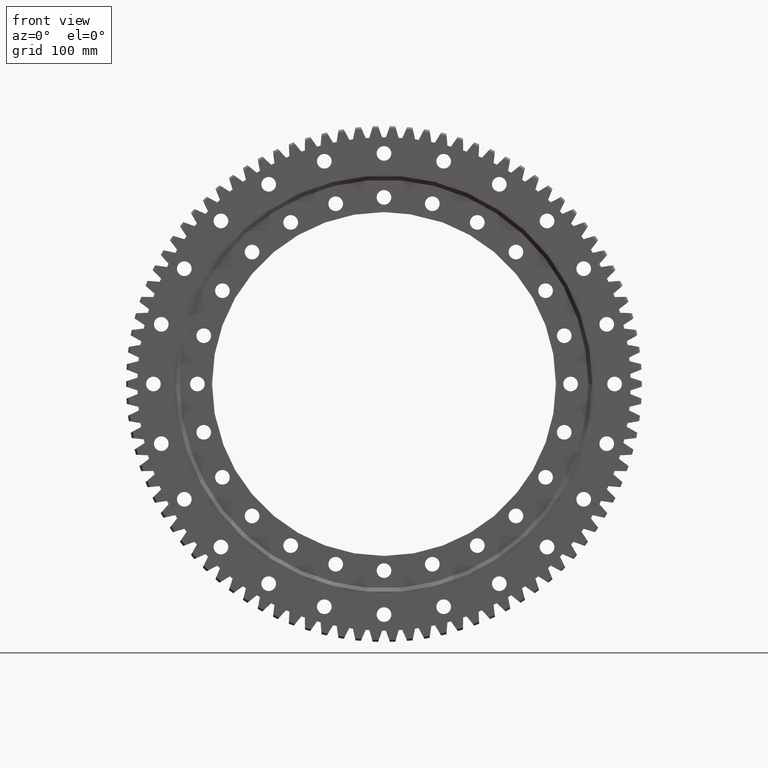
[diagram: clean part render]
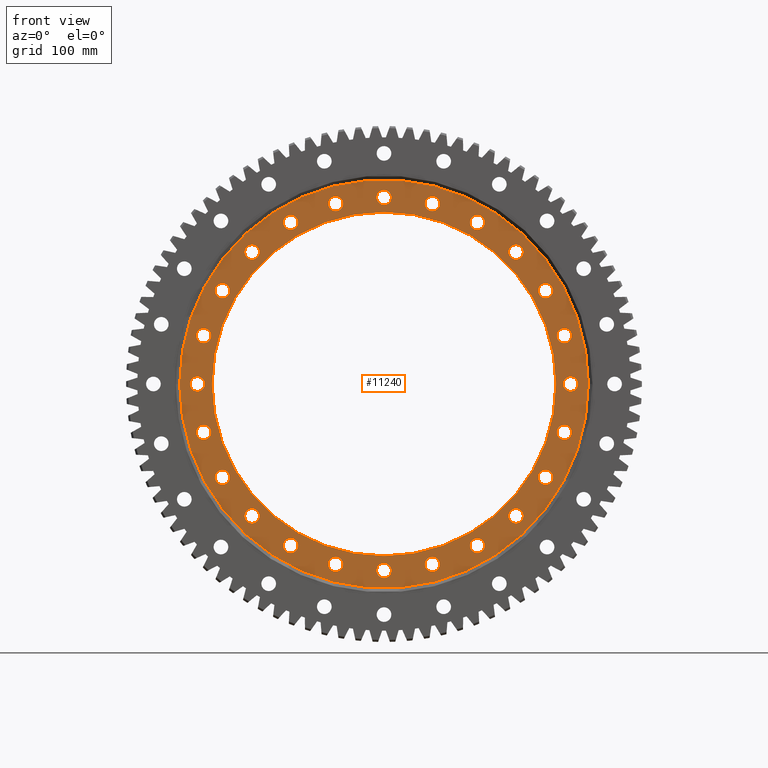
[diagram: same view with one face highlighted and labeled with its STEP entity id]
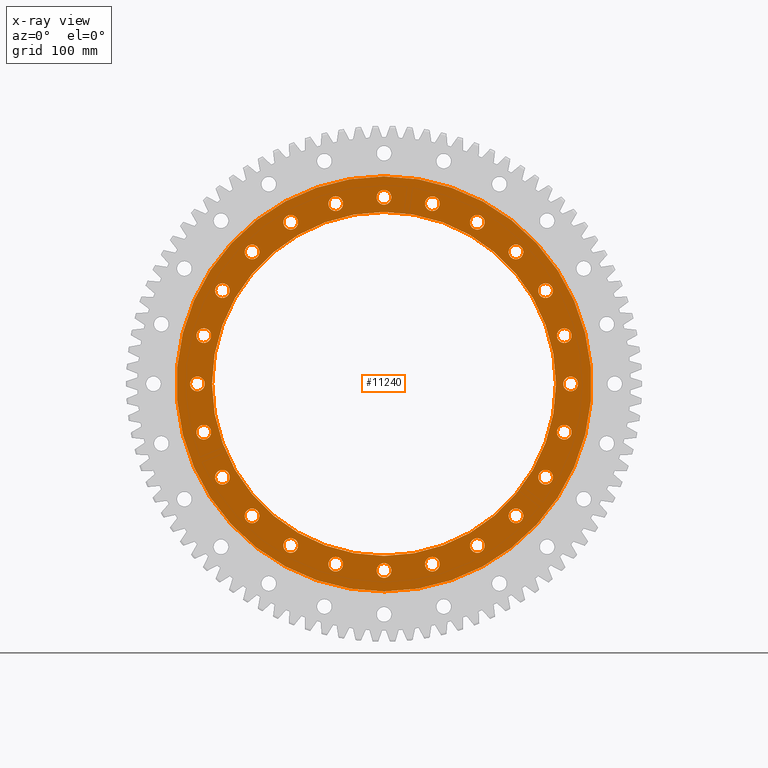
[diagram: x-ray of the same camera — body ghosted, the highlighted face saturated]
A machine part, front view. The second image highlights one B-rep face of the part: STEP entity #11240.
The next image is the same camera in x-ray: the body ghosted, the highlighted face saturated — about 0% of this face is hidden behind the body in this view.
In plain terms, the highlighted planar face has unit normal (-0, 1, -0).
Its self-contained STEP definition (entity closure, byte-faithful):
#23 = DIRECTION ( 'NONE',  ( -1.540743955509788700E-033, 1.000000000000000000, -2.727064569436389700E-017 ) ) ;
#186 = CARTESIAN_POINT ( 'NONE',  ( 197.9898987322337700, -28.00000000000002500, 208.9898987322328900 ) ) ;
#247 = AXIS2_PLACEMENT_3D ( 'NONE', #9327, #1546, #15220 ) ;
#438 = DIRECTION ( 'NONE',  ( 0.0000000000000000000, 1.000000000000000000, -2.727064569436390300E-017 ) ) ;
#482 = DIRECTION ( 'NONE',  ( 1.540743955509788700E-033, 1.000000000000000000, -2.727064569436389700E-017 ) ) ;
#484 = CIRCLE ( 'NONE', #487, 11.00000000000001200 ) ;
#487 = AXIS2_PLACEMENT_3D ( 'NONE', #9860, #23500, #11827 ) ;
#530 = CARTESIAN_POINT ( 'NONE',  ( 4.053661151360883500E-012, -28.00000000000002500, 269.0000000000000000 ) ) ;
#535 = CARTESIAN_POINT ( 'NONE',  ( -270.4592313609383000, -28.00000000000003200, 72.46933262870894100 ) ) ;
#593 = ORIENTED_EDGE ( 'NONE', *, *, #23211, .T. ) ;
#667 = AXIS2_PLACEMENT_3D ( 'NONE', #20891, #9199, #22859 ) ;
#715 = EDGE_LOOP ( 'NONE', ( #19233, #12029 ) ) ;
#806 = DIRECTION ( 'NONE',  ( 1.540743955509788700E-033, 1.000000000000000000, -2.727064569436389700E-017 ) ) ;
#845 = ORIENTED_EDGE ( 'NONE', *, *, #20296, .T. ) ;
#853 = EDGE_LOOP ( 'NONE', ( #13619, #24057 ) ) ;
#1004 = CARTESIAN_POINT ( 'NONE',  ( -72.46933262870800300, -28.00000000000003900, -259.4592313609385900 ) ) ;
#1090 = CARTESIAN_POINT ( 'NONE',  ( 140.0000000000004000, -28.00000000000002500, 242.4871130596426100 ) ) ;
#1098 = DIRECTION ( 'NONE',  ( 0.0000000000000000000, 1.000000000000000000, -2.727064569436389400E-017 ) ) ;
#1101 = VERTEX_POINT ( 'NONE', #15086 ) ;
#1119 = EDGE_LOOP ( 'NONE', ( #17348, #7028 ) ) ;
#1125 = CARTESIAN_POINT ( 'NONE',  ( -197.9898987322308400, -28.00000000000002500, 197.9898987322358400 ) ) ;
#1127 = ORIENTED_EDGE ( 'NONE', *, *, #6775, .T. ) ;
#1236 = CARTESIAN_POINT ( 'NONE',  ( -280.0000000000000000, -28.00000000000004600, 11.00000000000308200 ) ) ;
#1266 = FACE_BOUND ( 'NONE', #853, .T. ) ;
#1290 = AXIS2_PLACEMENT_3D ( 'NONE', #12510, #806, #14469 ) ;
#1378 = CARTESIAN_POINT ( 'NONE',  ( -242.4871130596411600, -28.00000000000003200, 140.0000000000029600 ) ) ;
#1381 = VERTEX_POINT ( 'NONE', #22610 ) ;
#1426 = VERTEX_POINT ( 'NONE', #15009 ) ;
#1527 = VERTEX_POINT ( 'NONE', #21097 ) ;
#1546 = DIRECTION ( 'NONE',  ( -0.0000000000000000000, 1.000000000000000000, -2.727064569436389700E-017 ) ) ;
#1559 = FACE_BOUND ( 'NONE', #22504, .T. ) ;
#1600 = CARTESIAN_POINT ( 'NONE',  ( 4.052314039881821400E-012, -28.00000000000002500, 280.0000000000000000 ) ) ;
#1638 = CARTESIAN_POINT ( 'NONE',  ( -197.9898987322308400, -28.00000000000002500, 186.9898987322358400 ) ) ;
#1662 = ORIENTED_EDGE ( 'NONE', *, *, #9496, .T. ) ;
#1717 = CARTESIAN_POINT ( 'NONE',  ( 72.46933262870612700, -28.00000000000002500, 259.4592313609390400 ) ) ;
#1753 = CARTESIAN_POINT ( 'NONE',  ( 242.4871130596421000, -28.00000000000003900, -129.0000000000012500 ) ) ;
#1762 = CARTESIAN_POINT ( 'NONE',  ( 139.9999999999985200, -28.00000000000003900, -253.4871130596437200 ) ) ;
#1786 = EDGE_CURVE ( 'NONE', #6903, #17535, #9351, .T. ) ;
#1863 = AXIS2_PLACEMENT_3D ( 'NONE', #10578, #24217, #12527 ) ;
#1922 = CARTESIAN_POINT ( 'NONE',  ( 280.0000000000000000, -28.00000000000004600, -1.118706137174147000E-012 ) ) ;
#1941 = CIRCLE ( 'NONE', #7208, 311.4124999999999700 ) ;
#1969 = CIRCLE ( 'NONE', #22322, 11.00000000000002000 ) ;
#2006 = EDGE_CURVE ( 'NONE', #1527, #21650, #16045, .T. ) ;
#2047 = EDGE_LOOP ( 'NONE', ( #11152, #11577 ) ) ;
#2129 = VERTEX_POINT ( 'NONE', #17232 ) ;
#2187 = FACE_BOUND ( 'NONE', #1119, .T. ) ;
#2248 = EDGE_CURVE ( 'NONE', #16853, #23823, #16970, .T. ) ;
#2521 = DIRECTION ( 'NONE',  ( -0.9659258262890689800, 0.0000000000000000000, 0.2588190451025180700 ) ) ;
#2538 = DIRECTION ( 'NONE',  ( 3.081487911019577400E-033, 1.000000000000000000, -2.727064569436389400E-017 ) ) ;
#2573 = ORIENTED_EDGE ( 'NONE', *, *, #18925, .T. ) ;
#2580 = AXIS2_PLACEMENT_3D ( 'NONE', #4216, #17880, #6187 ) ;
#2614 = EDGE_CURVE ( 'NONE', #23823, #16853, #24592, .T. ) ;
#2668 = EDGE_LOOP ( 'NONE', ( #19784, #12931 ) ) ;
#2759 = CIRCLE ( 'NONE', #18026, 11.00000000000000200 ) ;
#2803 = FACE_BOUND ( 'NONE', #11726, .T. ) ;
#2959 = EDGE_CURVE ( 'NONE', #22457, #13236, #7485, .T. ) ;
#2981 = DIRECTION ( 'NONE',  ( -3.081487911019577400E-033, 1.000000000000000000, -2.727064569436389100E-017 ) ) ;
#3015 = EDGE_LOOP ( 'NONE', ( #1127, #19066 ) ) ;
#3080 = DIRECTION ( 'NONE',  ( 0.4999999999999887900, 0.0000000000000000000, 0.8660254037844451500 ) ) ;
#3114 = DIRECTION ( 'NONE',  ( -0.7071067811865486800, 0.0000000000000000000, 0.7071067811865462400 ) ) ;
#3118 = DIRECTION ( 'NONE',  ( 1.540743955509788700E-033, 1.000000000000000000, -2.727064569436389100E-017 ) ) ;
#3150 = CIRCLE ( 'NONE', #5507, 11.00000000000000200 ) ;
#3168 = DIRECTION ( 'NONE',  ( -1.540743955509788700E-033, 1.000000000000000000, -2.727064569436390000E-017 ) ) ;
#3201 = VERTEX_POINT ( 'NONE', #16855 ) ;
#3261 = CARTESIAN_POINT ( 'NONE',  ( 139.9999999999985200, -28.00000000000003900, -242.4871130596437500 ) ) ;
#3303 = AXIS2_PLACEMENT_3D ( 'NONE', #8208, #21856, #10152 ) ;
#3368 = DIRECTION ( 'NONE',  ( -0.8660254037844393700, 0.0000000000000000000, 0.4999999999999987800 ) ) ;
#3431 = FACE_BOUND ( 'NONE', #3015, .T. ) ;
#3477 = ORIENTED_EDGE ( 'NONE', *, *, #11892, .T. ) ;
#3596 = DIRECTION ( 'NONE',  ( 0.0000000000000000000, 0.0000000000000000000, 1.000000000000000000 ) ) ;
#3614 = VERTEX_POINT ( 'NONE', #5708 ) ;
#3667 = CIRCLE ( 'NONE', #24020, 11.00000000000001100 ) ;
#3713 = AXIS2_PLACEMENT_3D ( 'NONE', #12805, #1098, #14759 ) ;
#3755 = EDGE_CURVE ( 'NONE', #13964, #6182, #18111, .T. ) ;
#3780 = DIRECTION ( 'NONE',  ( -1.540743955509788700E-033, 1.000000000000000000, -2.727064569436390000E-017 ) ) ;
#3845 = AXIS2_PLACEMENT_3D ( 'NONE', #5752, #19384, #7708 ) ;
#3857 = AXIS2_PLACEMENT_3D ( 'NONE', #10253, #23890, #12204 ) ;
#3885 = AXIS2_PLACEMENT_3D ( 'NONE', #1922, #15572, #3895 ) ;
#3895 = DIRECTION ( 'NONE',  ( 1.000000000000000000, 0.0000000000000000000, 1.047444401652938900E-014 ) ) ;
#3929 = AXIS2_PLACEMENT_3D ( 'NONE', #8677, #22339, #10647 ) ;
#4022 = FACE_BOUND ( 'NONE', #715, .T. ) ;
#4150 = CARTESIAN_POINT ( 'NONE',  ( 270.4592313609393800, -28.00000000000003200, 83.46933262870491900 ) ) ;
#4177 = EDGE_LOOP ( 'NONE', ( #20113, #593 ) ) ;
#4182 = VERTEX_POINT ( 'NONE', #5608 ) ;
#4216 = CARTESIAN_POINT ( 'NONE',  ( 280.0000000000000000, -28.00000000000004600, -1.118706137174147000E-012 ) ) ;
#4224 = CIRCLE ( 'NONE', #9497, 11.00000000000001100 ) ;
#4235 = EDGE_LOOP ( 'NONE', ( #7882, #1662 ) ) ;
#4315 = CARTESIAN_POINT ( 'NONE',  ( 0.0000000000000000000, -28.00000000000003200, -8.260568413772138900E-017 ) ) ;
#4558 = ORIENTED_EDGE ( 'NONE', *, *, #7245, .T. ) ;
#4580 = EDGE_CURVE ( 'NONE', #7662, #21347, #23902, .T. ) ;
#4613 = CIRCLE ( 'NONE', #3713, 11.00000000000002000 ) ;
#4705 = EDGE_CURVE ( 'NONE', #8585, #14795, #5910, .T. ) ;
#4720 = CIRCLE ( 'NONE', #667, 11.00000000000002000 ) ;
#4786 = EDGE_LOOP ( 'NONE', ( #2573, #8201 ) ) ;
#4909 = EDGE_CURVE ( 'NONE', #15422, #5270, #1941, .T. ) ;
#4976 = EDGE_LOOP ( 'NONE', ( #23409, #17016 ) ) ;
#5002 = AXIS2_PLACEMENT_3D ( 'NONE', #21004, #9302, #22957 ) ;
#5016 = DIRECTION ( 'NONE',  ( -3.081487911019577400E-033, 1.000000000000000000, -2.727064569436389700E-017 ) ) ;
#5213 = DIRECTION ( 'NONE',  ( 0.5000000000000074400, 0.0000000000000000000, -0.8660254037844342700 ) ) ;
#5234 = EDGE_CURVE ( 'NONE', #23298, #2129, #22398, .T. ) ;
#5270 = VERTEX_POINT ( 'NONE', #12369 ) ;
#5457 = CARTESIAN_POINT ( 'NONE',  ( 242.4871130596421000, -28.00000000000003900, -140.0000000000012500 ) ) ;
#5474 = AXIS2_PLACEMENT_3D ( 'NONE', #10157, #23808, #12120 ) ;
#5492 = ORIENTED_EDGE ( 'NONE', *, *, #18874, .T. ) ;
#5507 = AXIS2_PLACEMENT_3D ( 'NONE', #6057, #19705, #8021 ) ;
#5608 = CARTESIAN_POINT ( 'NONE',  ( -72.46933262870207700, -28.00000000000002500, 259.4592313609401200 ) ) ;
#5696 = AXIS2_PLACEMENT_3D ( 'NONE', #16699, #5016, #18681 ) ;
#5706 = AXIS2_PLACEMENT_3D ( 'NONE', #20395, #8700, #22363 ) ;
#5708 = CARTESIAN_POINT ( 'NONE',  ( -197.9898987322351300, -28.00000000000003900, -186.9898987322315000 ) ) ;
#5752 = CARTESIAN_POINT ( 'NONE',  ( 140.0000000000004000, -28.00000000000002500, 242.4871130596426100 ) ) ;
#5910 = CIRCLE ( 'NONE', #7681, 11.00000000000001100 ) ;
#5930 = CARTESIAN_POINT ( 'NONE',  ( 72.46933262870395300, -28.00000000000003900, -270.4592313609396100 ) ) ;
#5942 = ORIENTED_EDGE ( 'NONE', *, *, #18734, .T. ) ;
#6046 = EDGE_LOOP ( 'NONE', ( #22257, #845 ) ) ;
#6057 = CARTESIAN_POINT ( 'NONE',  ( 72.46933262870395300, -28.00000000000003900, -270.4592313609396100 ) ) ;
#6182 = VERTEX_POINT ( 'NONE', #14933 ) ;
#6187 = DIRECTION ( 'NONE',  ( 1.000000000000000000, 0.0000000000000000000, 1.047444401652938900E-014 ) ) ;
#6233 = DIRECTION ( 'NONE',  ( 3.081487911019577400E-033, 1.000000000000000000, -2.727064569436389700E-017 ) ) ;
#6296 = DIRECTION ( 'NONE',  ( -2.189528850507526700E-047, 1.000000000000000000, -2.727064569436389100E-017 ) ) ;
#6297 = DIRECTION ( 'NONE',  ( 0.0000000000000000000, 2.228200185897235700E-017, 1.000000000000000000 ) ) ;
#6411 = CARTESIAN_POINT ( 'NONE',  ( -242.4871130596442600, -28.00000000000003900, -139.9999999999976400 ) ) ;
#6576 = CARTESIAN_POINT ( 'NONE',  ( 270.4592313609393800, -28.00000000000003200, 72.46933262870490500 ) ) ;
#6611 = VERTEX_POINT ( 'NONE', #11598 ) ;
#6642 = CARTESIAN_POINT ( 'NONE',  ( 197.9898987322337700, -28.00000000000002500, 186.9898987322328600 ) ) ;
#6680 = AXIS2_PLACEMENT_3D ( 'NONE', #19935, #8246, #21896 ) ;
#6715 = CIRCLE ( 'NONE', #5706, 11.00000000000000900 ) ;
#6759 = CIRCLE ( 'NONE', #19011, 11.00000000000002000 ) ;
#6762 = EDGE_CURVE ( 'NONE', #21300, #7010, #6759, .T. ) ;
#6775 = EDGE_CURVE ( 'NONE', #23039, #15617, #20481, .T. ) ;
#6779 = FACE_OUTER_BOUND ( 'NONE', #15178, .T. ) ;
#6862 = CIRCLE ( 'NONE', #14632, 11.00000000000002700 ) ;
#6903 = VERTEX_POINT ( 'NONE', #6642 ) ;
#7010 = VERTEX_POINT ( 'NONE', #22589 ) ;
#7011 = VERTEX_POINT ( 'NONE', #10892 ) ;
#7013 = AXIS2_PLACEMENT_3D ( 'NONE', #8783, #22452, #10747 ) ;
#7028 = ORIENTED_EDGE ( 'NONE', *, *, #9077, .T. ) ;
#7089 = DIRECTION ( 'NONE',  ( -3.081487911019577400E-033, 1.000000000000000000, -2.727064569436389100E-017 ) ) ;
#7106 = CIRCLE ( 'NONE', #13819, 11.00000000000002100 ) ;
#7198 = AXIS2_PLACEMENT_3D ( 'NONE', #14653, #2981, #16627 ) ;
#7208 = AXIS2_PLACEMENT_3D ( 'NONE', #4315, #17983, #6297 ) ;
#7226 = CARTESIAN_POINT ( 'NONE',  ( -139.9999999999967900, -28.00000000000002500, 242.4871130596447100 ) ) ;
#7228 = ORIENTED_EDGE ( 'NONE', *, *, #24408, .T. ) ;
#7245 = EDGE_CURVE ( 'NONE', #14251, #16828, #2759, .T. ) ;
#7276 = EDGE_LOOP ( 'NONE', ( #8146, #11235 ) ) ;
#7395 = FACE_BOUND ( 'NONE', #4786, .T. ) ;
#7419 = DIRECTION ( 'NONE',  ( 0.8660254037844428200, 0.0000000000000000000, -0.4999999999999928900 ) ) ;
#7455 = CARTESIAN_POINT ( 'NONE',  ( 72.46933262870395300, -28.00000000000003900, -259.4592313609396100 ) ) ;
#7485 = CIRCLE ( 'NONE', #6680, 10.99999999999998000 ) ;
#7496 = CIRCLE ( 'NONE', #22805, 11.00000000000000000 ) ;
#7620 = CARTESIAN_POINT ( 'NONE',  ( 3.159588741800171200E-014, -28.00000000000003200, -258.0000000000000000 ) ) ;
#7662 = VERTEX_POINT ( 'NONE', #11467 ) ;
#7681 = AXIS2_PLACEMENT_3D ( 'NONE', #1600, #15271, #3596 ) ;
#7708 = DIRECTION ( 'NONE',  ( 0.4999999999999887900, 0.0000000000000000000, 0.8660254037844451500 ) ) ;
#7745 = AXIS2_PLACEMENT_3D ( 'NONE', #6576, #20223, #8530 ) ;
#7796 = ORIENTED_EDGE ( 'NONE', *, *, #8960, .T. ) ;
#7882 = ORIENTED_EDGE ( 'NONE', *, *, #17514, .T. ) ;
#7899 = DIRECTION ( 'NONE',  ( 0.2588190451025287900, 0.0000000000000000000, -0.9659258262890662000 ) ) ;
#7913 = ORIENTED_EDGE ( 'NONE', *, *, #21483, .T. ) ;
#7994 = FACE_BOUND ( 'NONE', #14554, .T. ) ;
#8018 = EDGE_CURVE ( 'NONE', #11254, #10526, #24395, .T. ) ;
#8021 = DIRECTION ( 'NONE',  ( 0.2588190451025287900, 0.0000000000000000000, -0.9659258262890662000 ) ) ;
#8084 = ORIENTED_EDGE ( 'NONE', *, *, #20474, .T. ) ;
#8106 = ORIENTED_EDGE ( 'NONE', *, *, #19812, .T. ) ;
#8146 = ORIENTED_EDGE ( 'NONE', *, *, #21445, .T. ) ;
#8193 = EDGE_LOOP ( 'NONE', ( #12019, #7796 ) ) ;
#8201 = ORIENTED_EDGE ( 'NONE', *, *, #1786, .T. ) ;
#8208 = CARTESIAN_POINT ( 'NONE',  ( -197.9898987322351300, -28.00000000000003900, -197.9898987322315000 ) ) ;
#8246 = DIRECTION ( 'NONE',  ( 3.081487911019577400E-033, 1.000000000000000000, -2.727064569436389700E-017 ) ) ;
#8262 = DIRECTION ( 'NONE',  ( -3.081487911019577400E-033, 1.000000000000000000, -2.727064569436389400E-017 ) ) ;
#8270 = DIRECTION ( 'NONE',  ( 9.244463733058732100E-033, 1.000000000000000000, -2.727064569436389100E-017 ) ) ;
#8298 = ORIENTED_EDGE ( 'NONE', *, *, #2248, .T. ) ;
#8372 = DIRECTION ( 'NONE',  ( -0.8660254037844360400, 0.0000000000000000000, -0.5000000000000044400 ) ) ;
#8427 = CARTESIAN_POINT ( 'NONE',  ( 4.052314039881821400E-012, -28.00000000000002500, 280.0000000000000000 ) ) ;
#8439 = VERTEX_POINT ( 'NONE', #17629 ) ;
#8522 = DIRECTION ( 'NONE',  ( -3.081487911019577400E-033, 1.000000000000000000, -2.727064569436389100E-017 ) ) ;
#8530 = DIRECTION ( 'NONE',  ( 0.9659258262890655400, 0.0000000000000000000, 0.2588190451025311200 ) ) ;
#8565 = CIRCLE ( 'NONE', #3303, 11.00000000000002000 ) ;
#8566 = DIRECTION ( 'NONE',  ( -2.189528850507526700E-047, 1.000000000000000000, -2.727064569436389100E-017 ) ) ;
#8580 = AXIS2_PLACEMENT_3D ( 'NONE', #1090, #14749, #3080 ) ;
#8585 = VERTEX_POINT ( 'NONE', #530 ) ;
#8596 = CIRCLE ( 'NONE', #5696, 11.00000000000002700 ) ;
#8602 = FACE_BOUND ( 'NONE', #13534, .T. ) ;
#8677 = CARTESIAN_POINT ( 'NONE',  ( -280.0000000000000000, -28.00000000000004600, 3.075462843085185600E-012 ) ) ;
#8700 = DIRECTION ( 'NONE',  ( -3.081487911019577400E-033, 1.000000000000000000, -2.727064569436389700E-017 ) ) ;
#8783 = CARTESIAN_POINT ( 'NONE',  ( -72.46933262870800300, -28.00000000000003900, -270.4592313609385900 ) ) ;
#8960 = EDGE_CURVE ( 'NONE', #13236, #22457, #20574, .T. ) ;
#9004 = CARTESIAN_POINT ( 'NONE',  ( 4.052314039881821400E-012, -28.00000000000002500, 291.0000000000000600 ) ) ;
#9077 = EDGE_CURVE ( 'NONE', #21547, #6611, #12927, .T. ) ;
#9161 = DIRECTION ( 'NONE',  ( -0.5000000000000007800, 0.0000000000000000000, 0.8660254037844382600 ) ) ;
#9199 = DIRECTION ( 'NONE',  ( -3.081487911019577400E-033, 1.000000000000000000, -2.727064569436389400E-017 ) ) ;
#9211 = FACE_BOUND ( 'NONE', #22994, .T. ) ;
#9259 = CARTESIAN_POINT ( 'NONE',  ( 242.4871130596432400, -28.00000000000003200, 150.9999999999993500 ) ) ;
#9260 = EDGE_CURVE ( 'NONE', #4182, #7011, #14429, .T. ) ;
#9302 = DIRECTION ( 'NONE',  ( -0.0000000000000000000, 1.000000000000000000, -2.727064569436389700E-017 ) ) ;
#9327 = CARTESIAN_POINT ( 'NONE',  ( 0.0000000000000000000, -28.00000000000002100, 258.0000000000000000 ) ) ;
#9351 = CIRCLE ( 'NONE', #22181, 11.00000000000002000 ) ;
#9389 = ORIENTED_EDGE ( 'NONE', *, *, #10507, .T. ) ;
#9451 = CARTESIAN_POINT ( 'NONE',  ( -72.46933262870800300, -28.00000000000003900, -281.4592313609385900 ) ) ;
#9457 = EDGE_CURVE ( 'NONE', #6611, #21547, #21169, .T. ) ;
#9496 = EDGE_CURVE ( 'NONE', #12078, #15506, #15351, .T. ) ;
#9497 = AXIS2_PLACEMENT_3D ( 'NONE', #20258, #8566, #22225 ) ;
#9619 = VERTEX_POINT ( 'NONE', #20989 ) ;
#9701 = AXIS2_PLACEMENT_3D ( 'NONE', #17928, #6233, #19877 ) ;
#9822 = FACE_BOUND ( 'NONE', #7276, .T. ) ;
#9860 = CARTESIAN_POINT ( 'NONE',  ( 139.9999999999985200, -28.00000000000003900, -242.4871130596437500 ) ) ;
#9921 = EDGE_CURVE ( 'NONE', #18521, #3201, #15634, .T. ) ;
#9984 = DIRECTION ( 'NONE',  ( 9.244463733058732100E-033, 1.000000000000000000, -2.727064569436388400E-017 ) ) ;
#10120 = DIRECTION ( 'NONE',  ( 0.0000000000000000000, 1.000000000000000000, -2.727064569436390300E-017 ) ) ;
#10152 = DIRECTION ( 'NONE',  ( -0.7071067811865438000, 0.0000000000000000000, -0.7071067811865513500 ) ) ;
#10157 = CARTESIAN_POINT ( 'NONE',  ( 0.0000000000000000000, -28.00000000000003200, -8.260568413772138900E-017 ) ) ;
#10253 = CARTESIAN_POINT ( 'NONE',  ( 0.0000000000000000000, -28.00000000000002500, -8.260568413772157400E-017 ) ) ;
#10387 = DIRECTION ( 'NONE',  ( 0.0000000000000000000, 0.0000000000000000000, 1.000000000000000000 ) ) ;
#10507 = EDGE_CURVE ( 'NONE', #16487, #15870, #8596, .T. ) ;
#10526 = VERTEX_POINT ( 'NONE', #10898 ) ;
#10552 = VERTEX_POINT ( 'NONE', #1236 ) ;
#10578 = CARTESIAN_POINT ( 'NONE',  ( -72.46933262870207700, -28.00000000000002500, 270.4592313609401200 ) ) ;
#10647 = DIRECTION ( 'NONE',  ( -1.000000000000000000, 0.0000000000000000000, -3.491481338843147200E-015 ) ) ;
#10741 = EDGE_CURVE ( 'NONE', #6182, #13964, #14685, .T. ) ;
#10747 = DIRECTION ( 'NONE',  ( -0.2588190451025145200, 0.0000000000000000000, -0.9659258262890698700 ) ) ;
#10811 = CIRCLE ( 'NONE', #17268, 11.00000000000000500 ) ;
#10892 = CARTESIAN_POINT ( 'NONE',  ( -72.46933262870207700, -28.00000000000002500, 281.4592313609401200 ) ) ;
#10898 = CARTESIAN_POINT ( 'NONE',  ( -197.9898987322308400, -28.00000000000002500, 208.9898987322358700 ) ) ;
#10902 = CARTESIAN_POINT ( 'NONE',  ( -270.4592313609399500, -28.00000000000004600, -72.46933262870301500 ) ) ;
#10945 = EDGE_LOOP ( 'NONE', ( #16675, #23388 ) ) ;
#11004 = DIRECTION ( 'NONE',  ( -3.081487911019577400E-033, 1.000000000000000000, -2.727064569436389700E-017 ) ) ;
#11107 = EDGE_CURVE ( 'NONE', #10526, #11254, #7106, .T. ) ;
#11146 = DIRECTION ( 'NONE',  ( -1.540743955509788700E-033, 1.000000000000000000, -2.727064569436389700E-017 ) ) ;
#11152 = ORIENTED_EDGE ( 'NONE', *, *, #5234, .T. ) ;
#11171 = DIRECTION ( 'NONE',  ( 3.081487911019577400E-033, 1.000000000000000000, -2.727064569436389400E-017 ) ) ;
#11235 = ORIENTED_EDGE ( 'NONE', *, *, #9921, .T. ) ;
#11240 = ADVANCED_FACE ( 'NONE', ( #14384, #1266, #19594, #9822, #9211, #4022, #24160, #18993, #13759, #8602, #3431, #23544, #18388, #13162, #7994, #2803, #22953, #17746, #12566, #7395, #2187, #22345, #17153, #11955, #6779, #1559 ), #24953, .F. ) ;
#11254 = VERTEX_POINT ( 'NONE', #1638 ) ;
#11354 = ORIENTED_EDGE ( 'NONE', *, *, #20051, .T. ) ;
#11467 = CARTESIAN_POINT ( 'NONE',  ( -140.0000000000021000, -28.00000000000003900, -231.4871130596416400 ) ) ;
#11482 = AXIS2_PLACEMENT_3D ( 'NONE', #22854, #11171, #24810 ) ;
#11549 = EDGE_LOOP ( 'NONE', ( #5492, #9389 ) ) ;
#11577 = ORIENTED_EDGE ( 'NONE', *, *, #19642, .T. ) ;
#11598 = CARTESIAN_POINT ( 'NONE',  ( 140.0000000000004000, -28.00000000000002500, 253.4871130596426100 ) ) ;
#11726 = EDGE_LOOP ( 'NONE', ( #3477, #7913 ) ) ;
#11755 = CIRCLE ( 'NONE', #19515, 11.00000000000002700 ) ;
#11758 = CARTESIAN_POINT ( 'NONE',  ( 72.46933262870612700, -28.00000000000002500, 270.4592313609391000 ) ) ;
#11782 = CARTESIAN_POINT ( 'NONE',  ( -242.4871130596411600, -28.00000000000003200, 129.0000000000029600 ) ) ;
#11827 = DIRECTION ( 'NONE',  ( 0.5000000000000074400, 0.0000000000000000000, -0.8660254037844342700 ) ) ;
#11892 = EDGE_CURVE ( 'NONE', #1381, #20123, #14029, .T. ) ;
#11955 = FACE_BOUND ( 'NONE', #10945, .T. ) ;
#12019 = ORIENTED_EDGE ( 'NONE', *, *, #2959, .T. ) ;
#12029 = ORIENTED_EDGE ( 'NONE', *, *, #2006, .T. ) ;
#12034 = AXIS2_PLACEMENT_3D ( 'NONE', #11758, #23, #13693 ) ;
#12078 = VERTEX_POINT ( 'NONE', #1762 ) ;
#12120 = DIRECTION ( 'NONE',  ( 0.0000000000000000000, 2.228200185897235700E-017, 1.000000000000000000 ) ) ;
#12147 = CARTESIAN_POINT ( 'NONE',  ( 197.9898987322321800, -28.00000000000003900, -197.9898987322344500 ) ) ;
#12188 = CARTESIAN_POINT ( 'NONE',  ( -72.46933262870207700, -28.00000000000002500, 270.4592313609401200 ) ) ;
#12204 = DIRECTION ( 'NONE',  ( 0.0000000000000000000, 2.689493761204351900E-017, 1.000000000000000000 ) ) ;
#12317 = AXIS2_PLACEMENT_3D ( 'NONE', #18773, #7089, #20722 ) ;
#12369 = CARTESIAN_POINT ( 'NONE',  ( 3.813703213394750900E-014, -28.00000000000003900, -311.4124999999999700 ) ) ;
#12510 = CARTESIAN_POINT ( 'NONE',  ( -139.9999999999967900, -28.00000000000002500, 242.4871130596447100 ) ) ;
#12527 = DIRECTION ( 'NONE',  ( -0.2588190451025216800, 0.0000000000000000000, 0.9659258262890679800 ) ) ;
#12566 = FACE_BOUND ( 'NONE', #11549, .T. ) ;
#12617 = ORIENTED_EDGE ( 'NONE', *, *, #17310, .T. ) ;
#12641 = CIRCLE ( 'NONE', #21816, 10.99999999999999500 ) ;
#12805 = CARTESIAN_POINT ( 'NONE',  ( -197.9898987322351300, -28.00000000000003900, -197.9898987322315000 ) ) ;
#12811 = CIRCLE ( 'NONE', #3929, 11.00000000000001100 ) ;
#12863 = DIRECTION ( 'NONE',  ( -0.9659258262890670900, 0.0000000000000000000, -0.2588190451025252400 ) ) ;
#12927 = CIRCLE ( 'NONE', #3845, 11.00000000000003400 ) ;
#12931 = ORIENTED_EDGE ( 'NONE', *, *, #22867, .T. ) ;
#12969 = VERTEX_POINT ( 'NONE', #20586 ) ;
#12984 = CIRCLE ( 'NONE', #1863, 10.99999999999998000 ) ;
#13136 = VERTEX_POINT ( 'NONE', #7620 ) ;
#13162 = FACE_BOUND ( 'NONE', #6046, .T. ) ;
#13232 = CIRCLE ( 'NONE', #14091, 11.00000000000002300 ) ;
#13236 = VERTEX_POINT ( 'NONE', #11782 ) ;
#13246 = EDGE_LOOP ( 'NONE', ( #19358, #5942 ) ) ;
#13353 = EDGE_CURVE ( 'NONE', #21650, #1527, #20195, .T. ) ;
#13458 = AXIS2_PLACEMENT_3D ( 'NONE', #1378, #15039, #3368 ) ;
#13534 = EDGE_LOOP ( 'NONE', ( #8084, #7228 ) ) ;
#13619 = ORIENTED_EDGE ( 'NONE', *, *, #11107, .T. ) ;
#13659 = VERTEX_POINT ( 'NONE', #23109 ) ;
#13693 = DIRECTION ( 'NONE',  ( 0.2588190451025075300, 0.0000000000000000000, 0.9659258262890719800 ) ) ;
#13759 = FACE_BOUND ( 'NONE', #2668, .T. ) ;
#13796 = AXIS2_PLACEMENT_3D ( 'NONE', #15464, #3780, #17427 ) ;
#13819 = AXIS2_PLACEMENT_3D ( 'NONE', #1125, #14794, #3114 ) ;
#13828 = CIRCLE ( 'NONE', #19211, 11.00000000000001600 ) ;
#13929 = CIRCLE ( 'NONE', #11482, 11.00000000000001100 ) ;
#13964 = VERTEX_POINT ( 'NONE', #20273 ) ;
#14010 = EDGE_CURVE ( 'NONE', #3614, #23672, #8565, .T. ) ;
#14029 = CIRCLE ( 'NONE', #7198, 11.00000000000000500 ) ;
#14067 = ORIENTED_EDGE ( 'NONE', *, *, #2614, .T. ) ;
#14091 = AXIS2_PLACEMENT_3D ( 'NONE', #21660, #9984, #23619 ) ;
#14096 = DIRECTION ( 'NONE',  ( 0.7071067811865537900, 0.0000000000000000000, -0.7071067811865412400 ) ) ;
#14111 = CARTESIAN_POINT ( 'NONE',  ( -2.095737378650604300E-012, -28.00000000000003900, -291.0000000000000600 ) ) ;
#14135 = DIRECTION ( 'NONE',  ( -0.2588190451025216800, 0.0000000000000000000, 0.9659258262890679800 ) ) ;
#14195 = DIRECTION ( 'NONE',  ( 3.081487911019577400E-033, 1.000000000000000000, -2.727064569436389400E-017 ) ) ;
#14212 = CARTESIAN_POINT ( 'NONE',  ( -270.4592313609383000, -28.00000000000003200, 72.46933262870894100 ) ) ;
#14251 = VERTEX_POINT ( 'NONE', #22873 ) ;
#14384 = FACE_BOUND ( 'NONE', #19374, .T. ) ;
#14429 = CIRCLE ( 'NONE', #15596, 10.99999999999998000 ) ;
#14463 = VERTEX_POINT ( 'NONE', #4150 ) ;
#14469 = DIRECTION ( 'NONE',  ( -0.5000000000000007800, 0.0000000000000000000, 0.8660254037844382600 ) ) ;
#14554 = EDGE_LOOP ( 'NONE', ( #11354, #25276 ) ) ;
#14632 = AXIS2_PLACEMENT_3D ( 'NONE', #14212, #2538, #16186 ) ;
#14653 = CARTESIAN_POINT ( 'NONE',  ( 270.4592313609388200, -28.00000000000004600, -72.46933262870705100 ) ) ;
#14685 = CIRCLE ( 'NONE', #3885, 11.00000000000001100 ) ;
#14749 = DIRECTION ( 'NONE',  ( -1.540743955509788700E-033, 1.000000000000000000, -2.727064569436389700E-017 ) ) ;
#14759 = DIRECTION ( 'NONE',  ( -0.7071067811865438000, 0.0000000000000000000, -0.7071067811865513500 ) ) ;
#14794 = DIRECTION ( 'NONE',  ( 3.081487911019577400E-033, 1.000000000000000000, -2.727064569436389700E-017 ) ) ;
#14795 = VERTEX_POINT ( 'NONE', #9004 ) ;
#14803 = CARTESIAN_POINT ( 'NONE',  ( -72.46933262870800300, -28.00000000000003900, -270.4592313609385900 ) ) ;
#14856 = CARTESIAN_POINT ( 'NONE',  ( -140.0000000000021000, -28.00000000000003900, -242.4871130596416400 ) ) ;
#14881 = EDGE_LOOP ( 'NONE', ( #8106, #23081 ) ) ;
#14933 = CARTESIAN_POINT ( 'NONE',  ( 280.0000000000000000, -28.00000000000004600, -11.00000000000112400 ) ) ;
#15009 = CARTESIAN_POINT ( 'NONE',  ( 270.4592313609393800, -28.00000000000003200, 61.46933262870489800 ) ) ;
#15039 = DIRECTION ( 'NONE',  ( 3.081487911019577400E-033, 1.000000000000000000, -2.727064569436389700E-017 ) ) ;
#15086 = CARTESIAN_POINT ( 'NONE',  ( -280.0000000000000000, -28.00000000000004600, -10.99999999999693000 ) ) ;
#15116 = CIRCLE ( 'NONE', #12317, 11.00000000000000000 ) ;
#15178 = EDGE_LOOP ( 'NONE', ( #15368, #25292 ) ) ;
#15220 = DIRECTION ( 'NONE',  ( 0.0000000000000000000, 2.727064569436389700E-017, 1.000000000000000000 ) ) ;
#15271 = DIRECTION ( 'NONE',  ( 0.0000000000000000000, 1.000000000000000000, -2.727064569436389700E-017 ) ) ;
#15351 = CIRCLE ( 'NONE', #16771, 11.00000000000001200 ) ;
#15368 = ORIENTED_EDGE ( 'NONE', *, *, #4909, .F. ) ;
#15422 = VERTEX_POINT ( 'NONE', #17400 ) ;
#15464 = CARTESIAN_POINT ( 'NONE',  ( -140.0000000000021000, -28.00000000000003900, -242.4871130596416400 ) ) ;
#15506 = VERTEX_POINT ( 'NONE', #19615 ) ;
#15572 = DIRECTION ( 'NONE',  ( -3.081487911019577400E-033, 1.000000000000000000, -2.727064569436389700E-017 ) ) ;
#15596 = AXIS2_PLACEMENT_3D ( 'NONE', #12188, #482, #14135 ) ;
#15617 = VERTEX_POINT ( 'NONE', #14111 ) ;
#15623 = CIRCLE ( 'NONE', #13796, 11.00000000000001400 ) ;
#15634 = CIRCLE ( 'NONE', #17594, 11.00000000000002700 ) ;
#15647 = EDGE_CURVE ( 'NONE', #14795, #8585, #3667, .T. ) ;
#15712 = EDGE_CURVE ( 'NONE', #13659, #9619, #23781, .T. ) ;
#15718 = EDGE_CURVE ( 'NONE', #1101, #10552, #12811, .T. ) ;
#15842 = ORIENTED_EDGE ( 'NONE', *, *, #20556, .T. ) ;
#15870 = VERTEX_POINT ( 'NONE', #9259 ) ;
#16045 = CIRCLE ( 'NONE', #16452, 10.99999999999999100 ) ;
#16067 = CARTESIAN_POINT ( 'NONE',  ( -242.4871130596411600, -28.00000000000003200, 151.0000000000029600 ) ) ;
#16186 = DIRECTION ( 'NONE',  ( -0.9659258262890689800, 0.0000000000000000000, 0.2588190451025180700 ) ) ;
#16223 = EDGE_CURVE ( 'NONE', #15617, #23039, #4224, .T. ) ;
#16281 = CIRCLE ( 'NONE', #3857, 258.0000000000000000 ) ;
#16452 = AXIS2_PLACEMENT_3D ( 'NONE', #10902, #24563, #12863 ) ;
#16487 = VERTEX_POINT ( 'NONE', #17177 ) ;
#16627 = DIRECTION ( 'NONE',  ( 0.9659258262890708700, 0.0000000000000000000, -0.2588190451025110300 ) ) ;
#16675 = ORIENTED_EDGE ( 'NONE', *, *, #15647, .T. ) ;
#16699 = CARTESIAN_POINT ( 'NONE',  ( 242.4871130596432400, -28.00000000000003200, 139.9999999999993500 ) ) ;
#16762 = DIRECTION ( 'NONE',  ( -0.2588190451025145200, 0.0000000000000000000, -0.9659258262890698700 ) ) ;
#16771 = AXIS2_PLACEMENT_3D ( 'NONE', #3261, #16889, #5213 ) ;
#16813 = DIRECTION ( 'NONE',  ( -0.4999999999999947300, 0.0000000000000000000, -0.8660254037844417100 ) ) ;
#16828 = VERTEX_POINT ( 'NONE', #7455 ) ;
#16853 = VERTEX_POINT ( 'NONE', #1717 ) ;
#16855 = CARTESIAN_POINT ( 'NONE',  ( -270.4592313609383000, -28.00000000000003200, 83.46933262870895500 ) ) ;
#16889 = DIRECTION ( 'NONE',  ( -1.540743955509788700E-033, 1.000000000000000000, -2.727064569436389100E-017 ) ) ;
#16970 = CIRCLE ( 'NONE', #12034, 10.99999999999999300 ) ;
#17016 = ORIENTED_EDGE ( 'NONE', *, *, #10741, .T. ) ;
#17153 = FACE_BOUND ( 'NONE', #14881, .T. ) ;
#17177 = CARTESIAN_POINT ( 'NONE',  ( 242.4871130596432400, -28.00000000000003200, 128.9999999999993500 ) ) ;
#17232 = CARTESIAN_POINT ( 'NONE',  ( -242.4871130596442600, -28.00000000000003900, -150.9999999999976700 ) ) ;
#17268 = AXIS2_PLACEMENT_3D ( 'NONE', #20206, #8522, #22179 ) ;
#17310 = EDGE_CURVE ( 'NONE', #10552, #1101, #13929, .T. ) ;
#17325 = CARTESIAN_POINT ( 'NONE',  ( -242.4871130596442600, -28.00000000000003900, -128.9999999999976400 ) ) ;
#17348 = ORIENTED_EDGE ( 'NONE', *, *, #9457, .T. ) ;
#17376 = VERTEX_POINT ( 'NONE', #9451 ) ;
#17400 = CARTESIAN_POINT ( 'NONE',  ( 0.0000000000000000000, -28.00000000000002500, 311.4124999999999700 ) ) ;
#17427 = DIRECTION ( 'NONE',  ( -0.4999999999999947300, 0.0000000000000000000, -0.8660254037844417100 ) ) ;
#17514 = EDGE_CURVE ( 'NONE', #15506, #12078, #484, .T. ) ;
#17535 = VERTEX_POINT ( 'NONE', #186 ) ;
#17594 = AXIS2_PLACEMENT_3D ( 'NONE', #535, #14195, #2521 ) ;
#17629 = CARTESIAN_POINT ( 'NONE',  ( 0.0000000000000000000, -28.00000000000001800, 258.0000000000000000 ) ) ;
#17746 = FACE_BOUND ( 'NONE', #13246, .T. ) ;
#17880 = DIRECTION ( 'NONE',  ( -3.081487911019577400E-033, 1.000000000000000000, -2.727064569436389700E-017 ) ) ;
#17928 = CARTESIAN_POINT ( 'NONE',  ( -197.9898987322308400, -28.00000000000002500, 197.9898987322358400 ) ) ;
#17982 = CARTESIAN_POINT ( 'NONE',  ( -2.097084490129666500E-012, -28.00000000000003900, -280.0000000000000000 ) ) ;
#17983 = DIRECTION ( 'NONE',  ( -0.0000000000000000000, 1.000000000000000000, -2.727064569436389700E-017 ) ) ;
#18026 = AXIS2_PLACEMENT_3D ( 'NONE', #5930, #19577, #7899 ) ;
#18111 = CIRCLE ( 'NONE', #2580, 11.00000000000001100 ) ;
#18127 = CIRCLE ( 'NONE', #5002, 258.0000000000000000 ) ;
#18205 = ORIENTED_EDGE ( 'NONE', *, *, #21676, .T. ) ;
#18344 = CARTESIAN_POINT ( 'NONE',  ( 140.0000000000004000, -28.00000000000002500, 231.4871130596425800 ) ) ;
#18388 = FACE_BOUND ( 'NONE', #4235, .T. ) ;
#18433 = ORIENTED_EDGE ( 'NONE', *, *, #20893, .T. ) ;
#18521 = VERTEX_POINT ( 'NONE', #25364 ) ;
#18641 = AXIS2_PLACEMENT_3D ( 'NONE', #14856, #3168, #16813 ) ;
#18681 = DIRECTION ( 'NONE',  ( 0.8660254037844331600, 0.0000000000000000000, 0.5000000000000093300 ) ) ;
#18734 = EDGE_CURVE ( 'NONE', #1426, #14463, #22751, .T. ) ;
#18773 = CARTESIAN_POINT ( 'NONE',  ( 242.4871130596421000, -28.00000000000003900, -140.0000000000012500 ) ) ;
#18833 = VERTEX_POINT ( 'NONE', #1004 ) ;
#18874 = EDGE_CURVE ( 'NONE', #15870, #16487, #11755, .T. ) ;
#18925 = EDGE_CURVE ( 'NONE', #17535, #6903, #4720, .T. ) ;
#18963 = CARTESIAN_POINT ( 'NONE',  ( -270.4592313609399500, -28.00000000000004600, -61.46933262870300800 ) ) ;
#18993 = FACE_BOUND ( 'NONE', #4177, .T. ) ;
#19011 = AXIS2_PLACEMENT_3D ( 'NONE', #21818, #10120, #23763 ) ;
#19066 = ORIENTED_EDGE ( 'NONE', *, *, #16223, .T. ) ;
#19097 = DIRECTION ( 'NONE',  ( -3.081487911019577400E-033, 1.000000000000000000, -2.727064569436389100E-017 ) ) ;
#19187 = EDGE_CURVE ( 'NONE', #5270, #15422, #24570, .T. ) ;
#19211 = AXIS2_PLACEMENT_3D ( 'NONE', #14803, #3118, #16762 ) ;
#19233 = ORIENTED_EDGE ( 'NONE', *, *, #13353, .T. ) ;
#19295 = AXIS2_PLACEMENT_3D ( 'NONE', #6411, #20061, #8372 ) ;
#19358 = ORIENTED_EDGE ( 'NONE', *, *, #24379, .T. ) ;
#19374 = EDGE_LOOP ( 'NONE', ( #15842, #25023 ) ) ;
#19384 = DIRECTION ( 'NONE',  ( -1.540743955509788700E-033, 1.000000000000000000, -2.727064569436389700E-017 ) ) ;
#19515 = AXIS2_PLACEMENT_3D ( 'NONE', #22688, #11004, #24658 ) ;
#19577 = DIRECTION ( 'NONE',  ( -1.540743955509788700E-033, 1.000000000000000000, -2.727064569436389100E-017 ) ) ;
#19579 = EDGE_LOOP ( 'NONE', ( #14067, #8298 ) ) ;
#19594 = FACE_BOUND ( 'NONE', #8193, .T. ) ;
#19615 = CARTESIAN_POINT ( 'NONE',  ( 139.9999999999985200, -28.00000000000003900, -231.4871130596437200 ) ) ;
#19642 = EDGE_CURVE ( 'NONE', #2129, #23298, #13232, .T. ) ;
#19699 = ORIENTED_EDGE ( 'NONE', *, *, #15718, .T. ) ;
#19705 = DIRECTION ( 'NONE',  ( -1.540743955509788700E-033, 1.000000000000000000, -2.727064569436389100E-017 ) ) ;
#19784 = ORIENTED_EDGE ( 'NONE', *, *, #4580, .T. ) ;
#19812 = EDGE_CURVE ( 'NONE', #7011, #4182, #12984, .T. ) ;
#19877 = DIRECTION ( 'NONE',  ( -0.7071067811865486800, 0.0000000000000000000, 0.7071067811865462400 ) ) ;
#19935 = CARTESIAN_POINT ( 'NONE',  ( -242.4871130596411600, -28.00000000000003200, 140.0000000000029600 ) ) ;
#19939 = EDGE_CURVE ( 'NONE', #12969, #25128, #15116, .T. ) ;
#19941 = DIRECTION ( 'NONE',  ( 6.982962677686258800E-015, 0.0000000000000000000, -1.000000000000000000 ) ) ;
#19960 = CARTESIAN_POINT ( 'NONE',  ( 197.9898987322337700, -28.00000000000002500, 197.9898987322328900 ) ) ;
#19968 = CARTESIAN_POINT ( 'NONE',  ( -270.4592313609399500, -28.00000000000004600, -72.46933262870301500 ) ) ;
#19980 = CARTESIAN_POINT ( 'NONE',  ( -2.097084490129666500E-012, -28.00000000000003900, -269.0000000000000000 ) ) ;
#19995 = ORIENTED_EDGE ( 'NONE', *, *, #21340, .T. ) ;
#20051 = EDGE_CURVE ( 'NONE', #25128, #12969, #7496, .T. ) ;
#20061 = DIRECTION ( 'NONE',  ( 9.244463733058732100E-033, 1.000000000000000000, -2.727064569436388400E-017 ) ) ;
#20113 = ORIENTED_EDGE ( 'NONE', *, *, #14010, .T. ) ;
#20123 = VERTEX_POINT ( 'NONE', #23263 ) ;
#20195 = CIRCLE ( 'NONE', #21729, 10.99999999999999100 ) ;
#20206 = CARTESIAN_POINT ( 'NONE',  ( 270.4592313609388200, -28.00000000000004600, -72.46933262870705100 ) ) ;
#20223 = DIRECTION ( 'NONE',  ( -3.081487911019577400E-033, 1.000000000000000000, -2.727064569436389700E-017 ) ) ;
#20258 = CARTESIAN_POINT ( 'NONE',  ( -2.097084490129666500E-012, -28.00000000000003900, -280.0000000000000000 ) ) ;
#20273 = CARTESIAN_POINT ( 'NONE',  ( 280.0000000000000000, -28.00000000000004600, 10.99999999999888800 ) ) ;
#20296 = EDGE_CURVE ( 'NONE', #7010, #21300, #1969, .T. ) ;
#20314 = AXIS2_PLACEMENT_3D ( 'NONE', #17982, #6296, #19941 ) ;
#20375 = CARTESIAN_POINT ( 'NONE',  ( -197.9898987322351300, -28.00000000000003900, -208.9898987322315000 ) ) ;
#20395 = CARTESIAN_POINT ( 'NONE',  ( 270.4592313609393800, -28.00000000000003200, 72.46933262870490500 ) ) ;
#20474 = EDGE_CURVE ( 'NONE', #18833, #17376, #13828, .T. ) ;
#20481 = CIRCLE ( 'NONE', #20314, 11.00000000000001100 ) ;
#20556 = EDGE_CURVE ( 'NONE', #9619, #13659, #12641, .T. ) ;
#20574 = CIRCLE ( 'NONE', #13458, 10.99999999999998000 ) ;
#20586 = CARTESIAN_POINT ( 'NONE',  ( 242.4871130596421000, -28.00000000000003900, -151.0000000000012800 ) ) ;
#20722 = DIRECTION ( 'NONE',  ( 0.8660254037844428200, 0.0000000000000000000, -0.4999999999999928900 ) ) ;
#20801 = CARTESIAN_POINT ( 'NONE',  ( 72.46933262870612700, -28.00000000000002500, 281.4592313609391000 ) ) ;
#20856 = DIRECTION ( 'NONE',  ( 1.540743955509788700E-033, 1.000000000000000000, -2.727064569436389700E-017 ) ) ;
#20891 = CARTESIAN_POINT ( 'NONE',  ( 197.9898987322337700, -28.00000000000002500, 197.9898987322328900 ) ) ;
#20893 = EDGE_CURVE ( 'NONE', #13136, #8439, #16281, .T. ) ;
#20989 = CARTESIAN_POINT ( 'NONE',  ( -139.9999999999967900, -28.00000000000002500, 253.4871130596447100 ) ) ;
#21004 = CARTESIAN_POINT ( 'NONE',  ( 0.0000000000000000000, -28.00000000000002500, -8.260568413772157400E-017 ) ) ;
#21054 = CIRCLE ( 'NONE', #7013, 11.00000000000001600 ) ;
#21097 = CARTESIAN_POINT ( 'NONE',  ( -270.4592313609399500, -28.00000000000004600, -83.46933262870302900 ) ) ;
#21169 = CIRCLE ( 'NONE', #8580, 11.00000000000003400 ) ;
#21300 = VERTEX_POINT ( 'NONE', #21490 ) ;
#21340 = EDGE_CURVE ( 'NONE', #16828, #14251, #3150, .T. ) ;
#21347 = VERTEX_POINT ( 'NONE', #21572 ) ;
#21445 = EDGE_CURVE ( 'NONE', #3201, #18521, #6862, .T. ) ;
#21483 = EDGE_CURVE ( 'NONE', #20123, #1381, #10811, .T. ) ;
#21490 = CARTESIAN_POINT ( 'NONE',  ( 197.9898987322321800, -28.00000000000003900, -186.9898987322344500 ) ) ;
#21547 = VERTEX_POINT ( 'NONE', #18344 ) ;
#21572 = CARTESIAN_POINT ( 'NONE',  ( -140.0000000000021000, -28.00000000000003900, -253.4871130596416700 ) ) ;
#21650 = VERTEX_POINT ( 'NONE', #18963 ) ;
#21660 = CARTESIAN_POINT ( 'NONE',  ( -242.4871130596442600, -28.00000000000003900, -139.9999999999976400 ) ) ;
#21676 = EDGE_CURVE ( 'NONE', #8439, #13136, #18127, .T. ) ;
#21729 = AXIS2_PLACEMENT_3D ( 'NONE', #19968, #8270, #21926 ) ;
#21816 = AXIS2_PLACEMENT_3D ( 'NONE', #7226, #20856, #9161 ) ;
#21818 = CARTESIAN_POINT ( 'NONE',  ( 197.9898987322321800, -28.00000000000003900, -197.9898987322344500 ) ) ;
#21856 = DIRECTION ( 'NONE',  ( 0.0000000000000000000, 1.000000000000000000, -2.727064569436389400E-017 ) ) ;
#21896 = DIRECTION ( 'NONE',  ( -0.8660254037844393700, 0.0000000000000000000, 0.4999999999999987800 ) ) ;
#21917 = DIRECTION ( 'NONE',  ( 0.7071067811865386900, 0.0000000000000000000, 0.7071067811865563400 ) ) ;
#21926 = DIRECTION ( 'NONE',  ( -0.9659258262890670900, 0.0000000000000000000, -0.2588190451025252400 ) ) ;
#22026 = AXIS2_PLACEMENT_3D ( 'NONE', #22832, #11146, #24791 ) ;
#22075 = DIRECTION ( 'NONE',  ( 0.0000000000000000000, 1.000000000000000000, -2.727064569436389700E-017 ) ) ;
#22179 = DIRECTION ( 'NONE',  ( 0.9659258262890708700, 0.0000000000000000000, -0.2588190451025110300 ) ) ;
#22181 = AXIS2_PLACEMENT_3D ( 'NONE', #19960, #8262, #21917 ) ;
#22225 = DIRECTION ( 'NONE',  ( 6.982962677686258800E-015, 0.0000000000000000000, -1.000000000000000000 ) ) ;
#22257 = ORIENTED_EDGE ( 'NONE', *, *, #6762, .T. ) ;
#22322 = AXIS2_PLACEMENT_3D ( 'NONE', #12147, #438, #14096 ) ;
#22339 = DIRECTION ( 'NONE',  ( 3.081487911019577400E-033, 1.000000000000000000, -2.727064569436389400E-017 ) ) ;
#22345 = FACE_BOUND ( 'NONE', #19579, .T. ) ;
#22363 = DIRECTION ( 'NONE',  ( 0.9659258262890655400, 0.0000000000000000000, 0.2588190451025311200 ) ) ;
#22398 = CIRCLE ( 'NONE', #19295, 11.00000000000002300 ) ;
#22452 = DIRECTION ( 'NONE',  ( 1.540743955509788700E-033, 1.000000000000000000, -2.727064569436389100E-017 ) ) ;
#22457 = VERTEX_POINT ( 'NONE', #16067 ) ;
#22504 = EDGE_LOOP ( 'NONE', ( #18205, #18433 ) ) ;
#22589 = CARTESIAN_POINT ( 'NONE',  ( 197.9898987322321800, -28.00000000000003900, -208.9898987322344800 ) ) ;
#22610 = CARTESIAN_POINT ( 'NONE',  ( 270.4592313609388200, -28.00000000000004600, -61.46933262870704300 ) ) ;
#22688 = CARTESIAN_POINT ( 'NONE',  ( 242.4871130596432400, -28.00000000000003200, 139.9999999999993500 ) ) ;
#22751 = CIRCLE ( 'NONE', #7745, 11.00000000000000900 ) ;
#22805 = AXIS2_PLACEMENT_3D ( 'NONE', #5457, #19097, #7419 ) ;
#22832 = CARTESIAN_POINT ( 'NONE',  ( 72.46933262870612700, -28.00000000000002500, 270.4592313609391000 ) ) ;
#22854 = CARTESIAN_POINT ( 'NONE',  ( -280.0000000000000000, -28.00000000000004600, 3.075462843085185600E-012 ) ) ;
#22859 = DIRECTION ( 'NONE',  ( 0.7071067811865386900, 0.0000000000000000000, 0.7071067811865563400 ) ) ;
#22867 = EDGE_CURVE ( 'NONE', #21347, #7662, #15623, .T. ) ;
#22873 = CARTESIAN_POINT ( 'NONE',  ( 72.46933262870395300, -28.00000000000003900, -281.4592313609396700 ) ) ;
#22953 = FACE_BOUND ( 'NONE', #4976, .T. ) ;
#22957 = DIRECTION ( 'NONE',  ( 0.0000000000000000000, 2.689493761204351900E-017, 1.000000000000000000 ) ) ;
#22994 = EDGE_LOOP ( 'NONE', ( #12617, #19699 ) ) ;
#23039 = VERTEX_POINT ( 'NONE', #19980 ) ;
#23081 = ORIENTED_EDGE ( 'NONE', *, *, #9260, .T. ) ;
#23103 = EDGE_LOOP ( 'NONE', ( #19995, #4558 ) ) ;
#23109 = CARTESIAN_POINT ( 'NONE',  ( -139.9999999999967900, -28.00000000000002500, 231.4871130596447100 ) ) ;
#23211 = EDGE_CURVE ( 'NONE', #23672, #3614, #4613, .T. ) ;
#23263 = CARTESIAN_POINT ( 'NONE',  ( 270.4592313609388200, -28.00000000000004600, -83.46933262870706500 ) ) ;
#23298 = VERTEX_POINT ( 'NONE', #17325 ) ;
#23388 = ORIENTED_EDGE ( 'NONE', *, *, #4705, .T. ) ;
#23409 = ORIENTED_EDGE ( 'NONE', *, *, #3755, .T. ) ;
#23500 = DIRECTION ( 'NONE',  ( -1.540743955509788700E-033, 1.000000000000000000, -2.727064569436389100E-017 ) ) ;
#23544 = FACE_BOUND ( 'NONE', #23103, .T. ) ;
#23619 = DIRECTION ( 'NONE',  ( -0.8660254037844360400, 0.0000000000000000000, -0.5000000000000044400 ) ) ;
#23672 = VERTEX_POINT ( 'NONE', #20375 ) ;
#23763 = DIRECTION ( 'NONE',  ( 0.7071067811865537900, 0.0000000000000000000, -0.7071067811865412400 ) ) ;
#23781 = CIRCLE ( 'NONE', #1290, 10.99999999999999500 ) ;
#23808 = DIRECTION ( 'NONE',  ( -0.0000000000000000000, 1.000000000000000000, -2.727064569436389700E-017 ) ) ;
#23823 = VERTEX_POINT ( 'NONE', #20801 ) ;
#23890 = DIRECTION ( 'NONE',  ( -0.0000000000000000000, 1.000000000000000000, -2.727064569436389700E-017 ) ) ;
#23902 = CIRCLE ( 'NONE', #18641, 11.00000000000001400 ) ;
#24020 = AXIS2_PLACEMENT_3D ( 'NONE', #8427, #22075, #10387 ) ;
#24057 = ORIENTED_EDGE ( 'NONE', *, *, #8018, .T. ) ;
#24160 = FACE_BOUND ( 'NONE', #2047, .T. ) ;
#24217 = DIRECTION ( 'NONE',  ( 1.540743955509788700E-033, 1.000000000000000000, -2.727064569436389700E-017 ) ) ;
#24379 = EDGE_CURVE ( 'NONE', #14463, #1426, #6715, .T. ) ;
#24395 = CIRCLE ( 'NONE', #9701, 11.00000000000002100 ) ;
#24408 = EDGE_CURVE ( 'NONE', #17376, #18833, #21054, .T. ) ;
#24563 = DIRECTION ( 'NONE',  ( 9.244463733058732100E-033, 1.000000000000000000, -2.727064569436389100E-017 ) ) ;
#24570 = CIRCLE ( 'NONE', #5474, 311.4124999999999700 ) ;
#24592 = CIRCLE ( 'NONE', #22026, 10.99999999999999300 ) ;
#24658 = DIRECTION ( 'NONE',  ( 0.8660254037844331600, 0.0000000000000000000, 0.5000000000000093300 ) ) ;
#24791 = DIRECTION ( 'NONE',  ( 0.2588190451025075300, 0.0000000000000000000, 0.9659258262890719800 ) ) ;
#24810 = DIRECTION ( 'NONE',  ( -1.000000000000000000, 0.0000000000000000000, -3.491481338843147200E-015 ) ) ;
#24953 = PLANE ( 'NONE',  #247 ) ;
#25023 = ORIENTED_EDGE ( 'NONE', *, *, #15712, .T. ) ;
#25128 = VERTEX_POINT ( 'NONE', #1753 ) ;
#25276 = ORIENTED_EDGE ( 'NONE', *, *, #19939, .T. ) ;
#25292 = ORIENTED_EDGE ( 'NONE', *, *, #19187, .F. ) ;
#25364 = CARTESIAN_POINT ( 'NONE',  ( -270.4592313609383000, -28.00000000000003200, 61.46933262870893300 ) ) ;